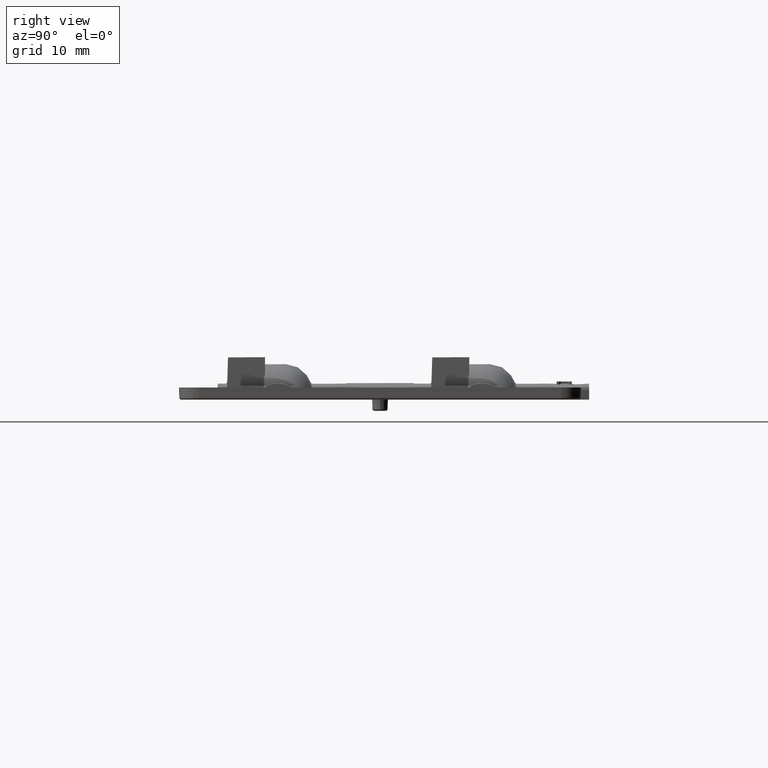
[diagram: clean part render]
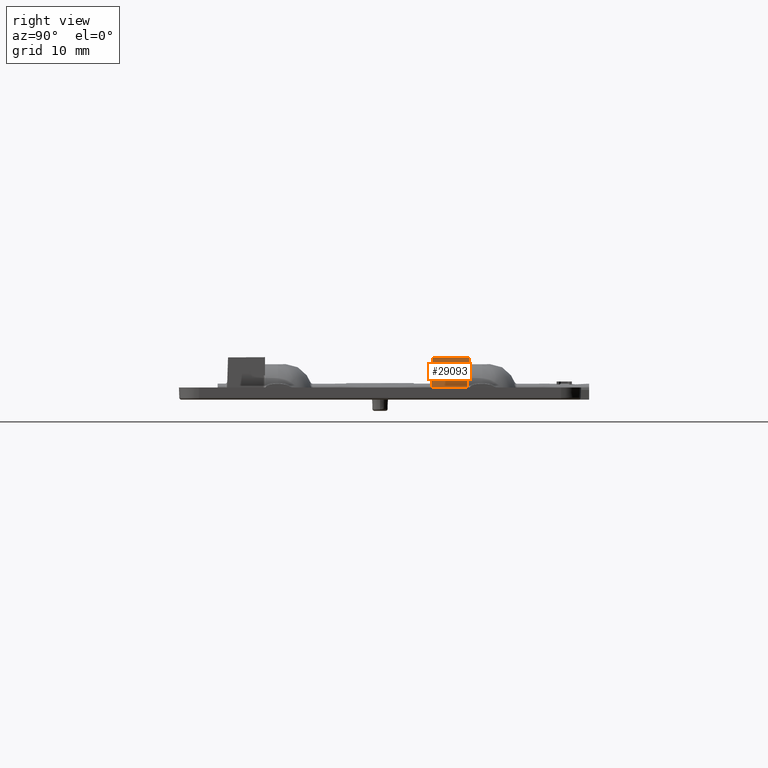
[diagram: same view with one face highlighted and labeled with its STEP entity id]
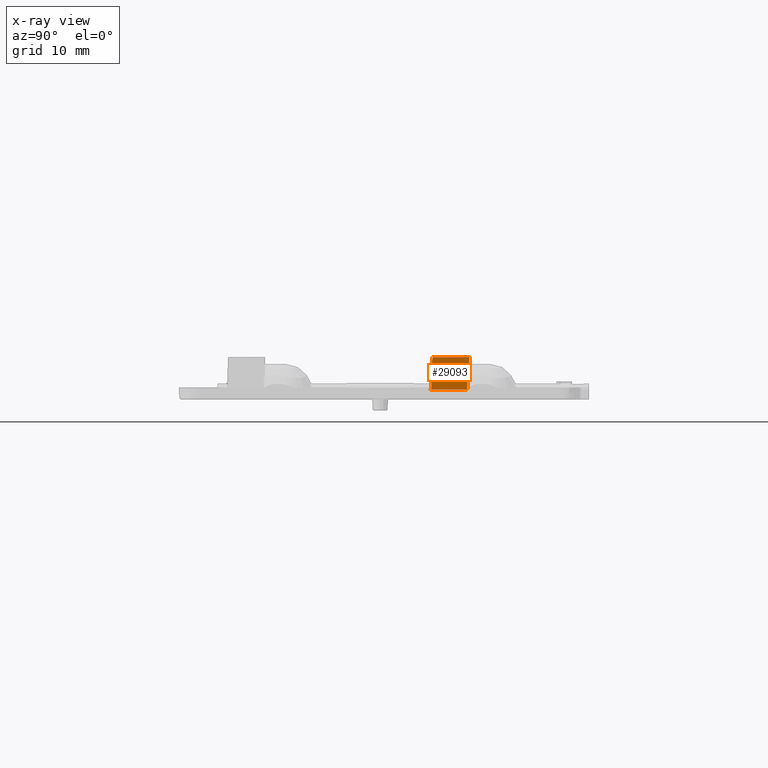
[diagram: x-ray of the same camera — body ghosted, the highlighted face saturated]
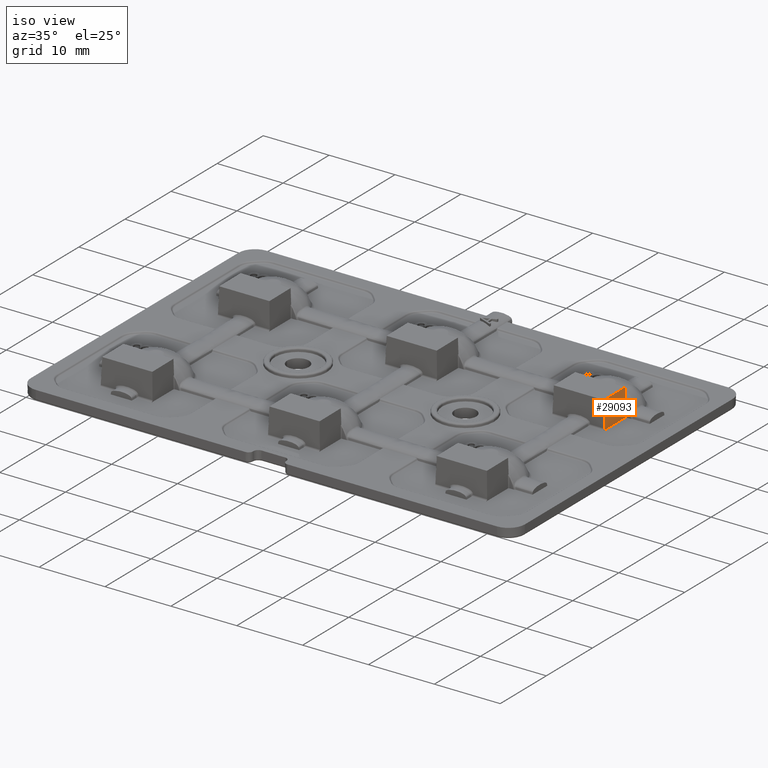
[diagram: same view with one face highlighted and labeled with its STEP entity id]
A machine part, right view. The second image highlights one B-rep face of the part: STEP entity #29093.
The next image is the same camera in x-ray: the body ghosted, the highlighted face saturated — about 0% of this face is hidden behind the body in this view.
A second angle (iso view) of the same face is appended — the face is thin or edge-on in the first view.
In plain terms, the highlighted planar face has unit normal (-0.9994, -0, -0.0349).
Its self-contained STEP definition (entity closure, byte-faithful):
#854 = EDGE_CURVE ( 'NONE', #7118, #11223, #39199, .T. ) ;
#2320 = VERTEX_POINT ( 'NONE', #43207 ) ;
#2531 = EDGE_CURVE ( 'NONE', #43376, #43105, #46170, .T. ) ;
#2679 = LINE ( 'NONE', #5040, #43593 ) ;
#3498 = DIRECTION ( 'NONE',  ( -0.03487826274237794400, 0.03487826274237468300, 0.9987827659587180700 ) ) ;
#4603 = EDGE_LOOP ( 'NONE', ( #28271, #22690, #6000, #12256, #32161, #26654, #47220, #44874, #35113 ) ) ;
#4704 = CARTESIAN_POINT ( 'NONE',  ( 29.27847558875422600, 10.90050401668333400, 2.980003820490770800 ) ) ;
#4986 = CARTESIAN_POINT ( 'NONE',  ( 29.34063469186402200, 6.126760877113137700, 1.199999999999999700 ) ) ;
#5040 = CARTESIAN_POINT ( 'NONE',  ( 28.90537900466293700, 11.10000000000000100, 13.66409210151860500 ) ) ;
#5731 = DIRECTION ( 'NONE',  ( -0.9993908270190956500, -0.0000000000000000000, -0.03489949670250430000 ) ) ;
#5842 = CARTESIAN_POINT ( 'NONE',  ( 29.33716433804316600, 6.372133981863213700, 1.299377930995596800 ) ) ;
#6000 = ORIENTED_EDGE ( 'NONE', *, *, #2531, .T. ) ;
#7118 = VERTEX_POINT ( 'NONE', #28581 ) ;
#7558 = LINE ( 'NONE', #11318, #29872 ) ;
#8334 = DIRECTION ( 'NONE',  ( 0.0000000000000000000, 1.000000000000000000, 0.0000000000000000000 ) ) ;
#10153 = CARTESIAN_POINT ( 'NONE',  ( 29.19922112951407900, 8.250042250991690200, 5.249554589092084300 ) ) ;
#11223 = VERTEX_POINT ( 'NONE', #50214 ) ;
#11318 = CARTESIAN_POINT ( 'NONE',  ( 28.89885266480341000, 6.768063520027252100, 13.85098202274642000 ) ) ;
#12256 = ORIENTED_EDGE ( 'NONE', *, *, #37613, .T. ) ;
#13828 = CARTESIAN_POINT ( 'NONE',  ( 29.34063469186402200, 6.126760877113137700, 1.199999999999999700 ) ) ;
#14131 = CARTESIAN_POINT ( 'NONE',  ( 29.19957615918558600, 6.496402180999172800, 5.238879226568168500 ) ) ;
#14412 = VECTOR ( 'NONE', #8334, 1000.000000000000000 ) ;
#15761 = EDGE_CURVE ( 'NONE', #16199, #43376, #48913, .T. ) ;
#16066 = FACE_OUTER_BOUND ( 'NONE', #4603, .T. ) ;
#16199 = VERTEX_POINT ( 'NONE', #17686 ) ;
#16661 = CARTESIAN_POINT ( 'NONE',  ( 29.27847558875422600, 10.90050401668333400, 2.980003820490770800 ) ) ;
#17686 = CARTESIAN_POINT ( 'NONE',  ( 29.34063469186402200, 10.83834491357354700, 1.199999999999999700 ) ) ;
#18088 =( BOUNDED_CURVE ( )  B_SPLINE_CURVE ( 3, ( #33562, #5842, #37546, #13828 ),
 .UNSPECIFIED., .F., .F. ) 
 B_SPLINE_CURVE_WITH_KNOTS ( ( 4, 4 ),
 ( 4.743922662667366700, 6.283185307179586200 ),
 .UNSPECIFIED. ) 
 CURVE ( )  GEOMETRIC_REPRESENTATION_ITEM ( )  RATIONAL_B_SPLINE_CURVE ( ( 1.000000000000000000, 0.8121115135893088900, 0.8121115135893088900, 1.000000000000000000 ) ) 
 REPRESENTATION_ITEM ( '' )  );
#20359 = VECTOR ( 'NONE', #22590, 1000.000000000000000 ) ;
#21520 = CARTESIAN_POINT ( 'NONE',  ( 28.90537900466293700, 12.70000000000000300, 13.66409210151860500 ) ) ;
#21925 = CARTESIAN_POINT ( 'NONE',  ( 29.19869657963836600, 10.44230125191616700, 5.264575732192416700 ) ) ;
#22590 = DIRECTION ( 'NONE',  ( -0.0000000000000000000, 1.000000000000000000, -1.457912856127801100E-017 ) ) ;
#22690 = ORIENTED_EDGE ( 'NONE', *, *, #15761, .T. ) ;
#22977 = VERTEX_POINT ( 'NONE', #4986 ) ;
#24202 = LINE ( 'NONE', #38971, #33466 ) ;
#25203 = EDGE_CURVE ( 'NONE', #22977, #16199, #35485, .T. ) ;
#25738 = AXIS2_PLACEMENT_3D ( 'NONE', #21520, #5731, #33462 ) ;
#26008 = EDGE_CURVE ( 'NONE', #2320, #11223, #7558, .T. ) ;
#26654 = ORIENTED_EDGE ( 'NONE', *, *, #31852, .T. ) ;
#28271 = ORIENTED_EDGE ( 'NONE', *, *, #25203, .T. ) ;
#28479 = CARTESIAN_POINT ( 'NONE',  ( 29.27766067152521900, 10.92956291365032900, 3.003339996665379500 ) ) ;
#28581 = CARTESIAN_POINT ( 'NONE',  ( 29.19829722239202500, 11.09999923118901300, 5.271616364205776500 ) ) ;
#29093 = ADVANCED_FACE ( 'NONE', ( #16066 ), #37258, .F. ) ;
#29119 = VECTOR ( 'NONE', #3498, 1000.000000000000200 ) ;
#29640 = LINE ( 'NONE', #34323, #20359 ) ;
#29872 = VECTOR ( 'NONE', #43145, 1000.000000000000000 ) ;
#29893 = CARTESIAN_POINT ( 'NONE',  ( 29.19829722239202500, 11.09999923118901300, 5.271616364205776500 ) ) ;
#30876 = CARTESIAN_POINT ( 'NONE',  ( 28.90364379947628500, 11.27533580596124500, 13.71378187674143600 ) ) ;
#31852 = EDGE_CURVE ( 'NONE', #46445, #7118, #2679, .T. ) ;
#32056 = CARTESIAN_POINT ( 'NONE',  ( 29.34063469186402200, 12.70000000000000300, 1.199999999999999700 ) ) ;
#32087 = CARTESIAN_POINT ( 'NONE',  ( 29.27720938291365400, 11.10000000000000100, 3.016263214441317100 ) ) ;
#32161 = ORIENTED_EDGE ( 'NONE', *, *, #44374, .T. ) ;
#32442 = CARTESIAN_POINT ( 'NONE',  ( 29.27720938281218800, 11.00436109436495400, 3.016263214555399600 ) ) ;
#33462 = DIRECTION ( 'NONE',  ( 0.03489949670250429300, 0.0000000000000000000, -0.9993908270190955400 ) ) ;
#33466 = VECTOR ( 'NONE', #42967, 1000.000000000000200 ) ;
#33562 = CARTESIAN_POINT ( 'NONE',  ( 29.33217974898156300, 6.376636590772779600, 1.442117885874623300 ) ) ;
#33859 = CARTESIAN_POINT ( 'NONE',  ( 29.19902077655919800, 9.126859842637738800, 5.255291947053971800 ) ) ;
#34323 = CARTESIAN_POINT ( 'NONE',  ( 29.27720938281218800, 11.05167884667823900, 3.016263214555399600 ) ) ;
#35113 = ORIENTED_EDGE ( 'NONE', *, *, #46092, .T. ) ;
#35485 = LINE ( 'NONE', #32056, #14412 ) ;
#36739 = DIRECTION ( 'NONE',  ( -0.03489949670250429300, 0.0000000000000000000, 0.9993908270190955400 ) ) ;
#37258 = PLANE ( 'NONE',  #25738 ) ;
#37546 = CARTESIAN_POINT ( 'NONE',  ( 29.34063469186402200, 6.269571829794852400, 1.200000000000000000 ) ) ;
#37613 = EDGE_CURVE ( 'NONE', #43105, #48403, #29640, .T. ) ;
#37847 = CARTESIAN_POINT ( 'NONE',  ( 29.19933249257252700, 7.373206579503190000, 5.246365568343786200 ) ) ;
#38971 = CARTESIAN_POINT ( 'NONE',  ( 28.90537900466293700, 11.10000000000000100, 13.66409210151860500 ) ) ;
#39199 = B_SPLINE_CURVE_WITH_KNOTS ( 'NONE', 3,
 ( #29893, #21925, #44438, #33859, #10153, #37847, #14131 ),
 .UNSPECIFIED., .F., .F.,
 ( 4, 3, 4 ),
 ( 4.336808689942017700E-019, 0.001973207275934851600, 0.004603712864690814900 ),
 .UNSPECIFIED. ) ;
#41785 = CARTESIAN_POINT ( 'NONE',  ( 29.27720938281218800, 11.00436109436495400, 3.016263214555399600 ) ) ;
#42967 = DIRECTION ( 'NONE',  ( -0.03489949670250429300, 0.0000000000000000000, 0.9993908270190955400 ) ) ;
#43105 = VERTEX_POINT ( 'NONE', #41785 ) ;
#43145 = DIRECTION ( 'NONE',  ( -0.03488216769587906100, 0.03150926929211728100, 0.9988945891962341900 ) ) ;
#43207 = CARTESIAN_POINT ( 'NONE',  ( 29.33217974898156300, 6.376636590772779600, 1.442117885874623300 ) ) ;
#43376 = VERTEX_POINT ( 'NONE', #16661 ) ;
#43593 = VECTOR ( 'NONE', #36739, 1000.000000000000200 ) ;
#44374 = EDGE_CURVE ( 'NONE', #48403, #46445, #24202, .T. ) ;
#44438 = CARTESIAN_POINT ( 'NONE',  ( 29.19887048705821900, 9.784581503780778200, 5.259595675269759200 ) ) ;
#44874 = ORIENTED_EDGE ( 'NONE', *, *, #26008, .F. ) ;
#46092 = EDGE_CURVE ( 'NONE', #2320, #22977, #18088, .T. ) ;
#46170 = B_SPLINE_CURVE_WITH_KNOTS ( 'NONE', 3,
 ( #4704, #28479, #48197, #32442 ),
 .UNSPECIFIED., .F., .F.,
 ( 4, 4 ),
 ( -2.452040321860908200E-006, 0.0001093824190961688100 ),
 .UNSPECIFIED. ) ;
#46445 = VERTEX_POINT ( 'NONE', #51348 ) ;
#47220 = ORIENTED_EDGE ( 'NONE', *, *, #854, .T. ) ;
#48197 = CARTESIAN_POINT ( 'NONE',  ( 29.27720938281219900, 10.96662240740258600, 3.016263214555030500 ) ) ;
#48403 = VERTEX_POINT ( 'NONE', #32087 ) ;
#48913 = LINE ( 'NONE', #30876, #29119 ) ;
#50214 = CARTESIAN_POINT ( 'NONE',  ( 29.19957615918558600, 6.496402180999172800, 5.238879226568168500 ) ) ;
#51348 = CARTESIAN_POINT ( 'NONE',  ( 29.22888822949041900, 11.10000000000000100, 4.400000000000001200 ) ) ;